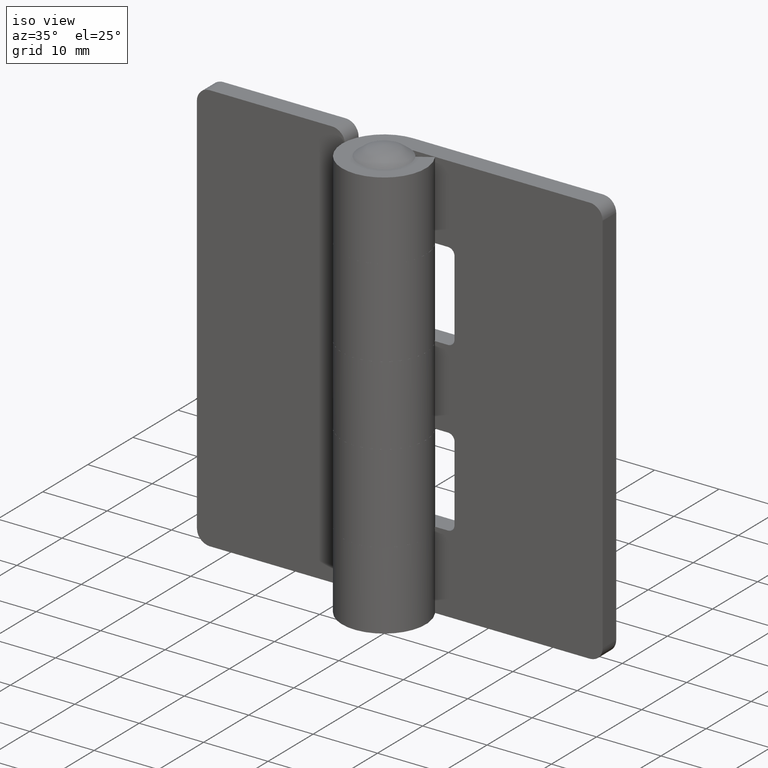
[diagram: clean part render]
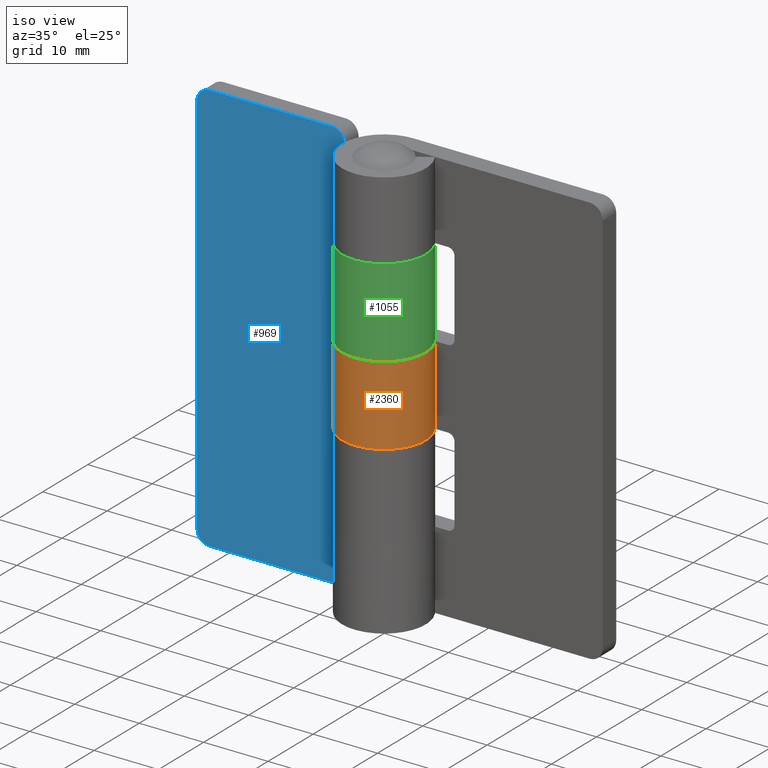
[diagram: same view with three faces highlighted in distinct colors, each labeled with its STEP entity id]
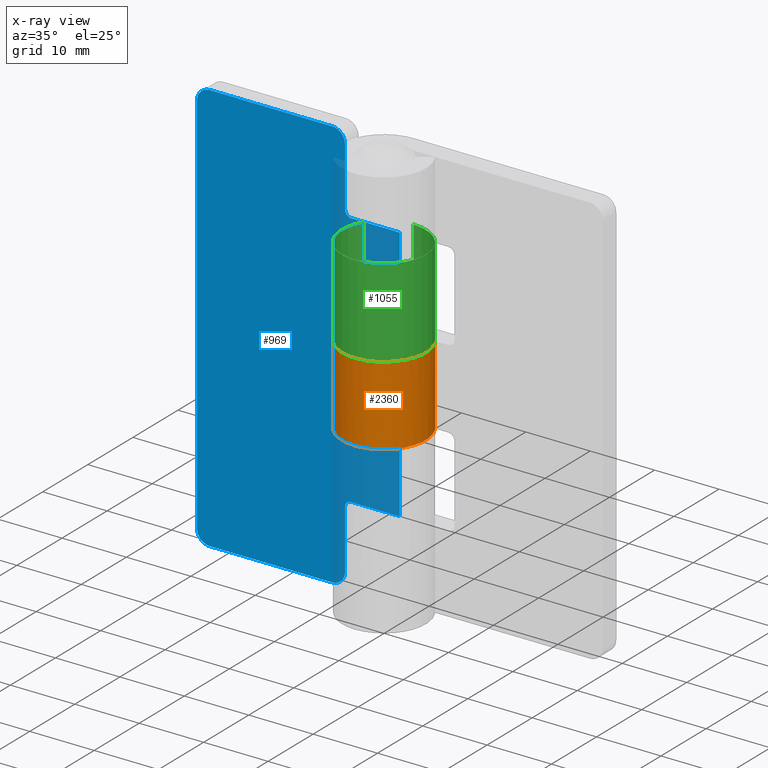
[diagram: x-ray of the same camera — body ghosted, the three highlighted faces saturated]
A machine part, iso view with three faces highlighted in distinct colors.
The next image is the same camera in x-ray (body ghosted, the three faces saturated) — at least one of them is partly hidden behind the body in this view.
Their STEP definitions:

[orange] entity #2360 — the highlighted face is a freeform B-spline surface patch.
#1576=CARTESIAN_POINT('',(-1.193992E-015,6.499999000000000,25.850006000000199));
#1577=VERTEX_POINT('',#1576);
#1612=CARTESIAN_POINT('',(5.508857131928449,3.449999000000000,25.850006000000199));
#1613=VERTEX_POINT('',#1612);
#1619=CARTESIAN_POINT('',(5.508857131928449,3.449999000000000,25.850006000000199));
#1620=CARTESIAN_POINT('',(8.180823277852058,-0.816517409487065,25.850006000000203));
#1621=CARTESIAN_POINT('',(4.718295843924373,-4.470758309656011,25.850006000000199));
#1622=CARTESIAN_POINT('',(1.255768409996687,-8.124999209824960,25.850006000000203));
#1623=CARTESIAN_POINT('',(-3.148412814419355,-5.686607287004006,25.850006000000199));
#1624=CARTESIAN_POINT('',(-7.552594038835394,-3.248215364183054,25.850006000000203));
#1625=CARTESIAN_POINT('',(-6.293367306757411,1.625891468194070,25.850006000000199));
#1626=CARTESIAN_POINT('',(-5.034140574679428,6.499998300571200,25.850006000000203));
#1627=CARTESIAN_POINT('',(-1.193992E-015,6.499999000000000,25.850006000000199));
#1635=(BOUNDED_CURVE()B_SPLINE_CURVE(2,(#1619,#1620,#1621,#1622,#1623,#1624,#1625,#1626,#1627),.UNSPECIFIED.,.F.,.U.)B_SPLINE_CURVE_WITH_KNOTS((3,2,2,2,3),(0.0,0.250000000000000,0.500000000000000,0.750000000000000,1.0),.UNSPECIFIED.)CURVE()GEOMETRIC_REPRESENTATION_ITEM()RATIONAL_B_SPLINE_CURVE((1.0,0.790612857104433,1.0,0.790612857104433,1.0,0.790612857104433,1.0,0.790612857104433,1.0))REPRESENTATION_ITEM(''));
#1636=EDGE_CURVE('',#1613,#1577,#1635,.T.);
#1744=CARTESIAN_POINT('',(-1.193991E-015,6.500000000000000,38.150001999999851));
#1745=VERTEX_POINT('',#1744);
#1751=CARTESIAN_POINT('',(5.508857131928449,3.449999000000000,38.150001999999851));
#1752=VERTEX_POINT('',#1751);
#1753=CARTESIAN_POINT('',(0.0,6.500000000000000,38.150001999999851));
#1754=CARTESIAN_POINT('',(-5.034140574679423,6.500000000000000,38.150001999999851));
#1755=CARTESIAN_POINT('',(-6.293367306757409,1.625892967644855,38.150001999999851));
#1756=CARTESIAN_POINT('',(-7.552594038835394,-3.248214064710291,38.150001999999851));
#1757=CARTESIAN_POINT('',(-3.148412814419357,-5.686606787004002,38.150001999999851));
#1758=CARTESIAN_POINT('',(1.255768409996682,-8.124999509297712,38.150001999999851));
#1759=CARTESIAN_POINT('',(4.718295843924371,-4.470758809106796,38.150001999999851));
#1760=CARTESIAN_POINT('',(8.180823277852062,-0.816518108915877,38.150001999999851));
#1761=CARTESIAN_POINT('',(5.508857131928457,3.449998999999996,38.150001999999851));
#1769=(BOUNDED_CURVE()B_SPLINE_CURVE(2,(#1753,#1754,#1755,#1756,#1757,#1758,#1759,#1760,#1761),.UNSPECIFIED.,.F.,.U.)B_SPLINE_CURVE_WITH_KNOTS((3,2,2,2,3),(0.0,0.250000000000000,0.500000000000000,0.750000000000000,1.0),.UNSPECIFIED.)CURVE()GEOMETRIC_REPRESENTATION_ITEM()RATIONAL_B_SPLINE_CURVE((1.0,0.790612857104433,1.0,0.790612857104433,1.0,0.790612857104433,1.0,0.790612857104433,1.0))REPRESENTATION_ITEM(''));
#1770=EDGE_CURVE('',#1745,#1752,#1769,.T.);
#2080=CARTESIAN_POINT('',(5.508857131928449,3.449999000000000,38.150001999999851));
#2081=CARTESIAN_POINT('',(5.508857131928449,3.449999000000000,25.850006000000199));
#2082=QUASI_UNIFORM_CURVE('',1,(#2080,#2081),.UNSPECIFIED.,.F.,.U.);
#2083=EDGE_CURVE('',#1752,#1613,#2082,.T.);
#2193=CARTESIAN_POINT('',(-1.193991E-015,6.500000000000000,38.150001999999851));
#2194=CARTESIAN_POINT('',(-1.193992E-015,6.499999000000000,25.850006000000199));
#2195=QUASI_UNIFORM_CURVE('',1,(#2193,#2194),.UNSPECIFIED.,.F.,.U.);
#2196=EDGE_CURVE('',#1745,#1577,#2195,.T.);
#2332=CARTESIAN_POINT('',(0.277016511232355,6.494094382783840,38.457501899999848));
#2333=CARTESIAN_POINT('',(0.277016511232355,6.494094382783840,25.534818602500199));
#2334=CARTESIAN_POINT('',(-7.887179053368678,6.842351867048327,38.457501899999855));
#2335=CARTESIAN_POINT('',(-7.887179053368678,6.842351867048327,25.534818602500199));
#2336=CARTESIAN_POINT('',(-6.389966320746899,-1.190936782419748,38.457501899999848));
#2337=CARTESIAN_POINT('',(-6.389966320746899,-1.190936782419748,25.534818602500199));
#2338=CARTESIAN_POINT('',(-4.892753588125120,-9.224225431887824,38.457501899999855));
#2339=CARTESIAN_POINT('',(-4.892753588125120,-9.224225431887824,25.534818602500199));
#2340=CARTESIAN_POINT('',(2.597842810915255,-5.958289413059413,38.457501899999848));
#2341=CARTESIAN_POINT('',(2.597842810915255,-5.958289413059413,25.534818602500199));
#2342=CARTESIAN_POINT('',(10.088439209955627,-2.692353394231001,38.457501899999855));
#2343=CARTESIAN_POINT('',(10.088439209955627,-2.692353394231001,25.534818602500199));
#2344=CARTESIAN_POINT('',(5.221191362076864,3.871583753526960,38.457501899999848));
#2345=CARTESIAN_POINT('',(5.221191362076864,3.871583753526960,25.534818602500199));
#2353=(BOUNDED_SURFACE()B_SPLINE_SURFACE(1,2,((#2332,#2334,#2336,#2338,#2340,#2342,#2344),(#2333,#2335,#2337,#2339,#2341,#2343,#2345)),.UNSPECIFIED.,.F.,.F.,.U.)B_SPLINE_SURFACE_WITH_KNOTS((2,2),(3,2,2,3),(0.0,12.922683297499651),(0.0,12.540911261256831,25.081822522513662,37.622733783770492),.UNSPECIFIED.)GEOMETRIC_REPRESENTATION_ITEM()RATIONAL_B_SPLINE_SURFACE(((1.0,0.622514636637620,1.0,0.622514636637620,1.0,0.622514636637620,1.0),(1.0,0.622514636637620,1.0,0.622514636637620,1.0,0.622514636637620,1.0)))REPRESENTATION_ITEM('')SURFACE());
#2354=ORIENTED_EDGE('',*,*,#1636,.F.);
#2355=ORIENTED_EDGE('',*,*,#2083,.F.);
#2356=ORIENTED_EDGE('',*,*,#1770,.F.);
#2357=ORIENTED_EDGE('',*,*,#2196,.T.);
#2358=EDGE_LOOP('',(#2354,#2355,#2356,#2357));
#2359=FACE_OUTER_BOUND('',#2358,.T.);
#2360=ADVANCED_FACE('',(#2359),#2353,.T.);

[blue] entity #969 — the highlighted face is a freeform B-spline surface patch.
#58=CARTESIAN_POINT('',(-8.500008000000110,3.499999000000000,37.150001999999851));
#59=VERTEX_POINT('',#58);
#60=CARTESIAN_POINT('',(-7.500008000000110,3.499999000000000,38.150001999999851));
#61=VERTEX_POINT('',#60);
#62=CARTESIAN_POINT('',(-8.500008000000111,3.499999000000000,37.150001999999887));
#63=CARTESIAN_POINT('',(-8.500008000000111,3.499999000000001,37.564215562372979));
#64=CARTESIAN_POINT('',(-8.207114781186673,3.499999000000000,37.857108781186433));
#65=CARTESIAN_POINT('',(-7.914221562373220,3.499999000000001,38.150001999999908));
#66=CARTESIAN_POINT('',(-7.500008000000110,3.499999000000000,38.150001999999901));
#74=(BOUNDED_CURVE()B_SPLINE_CURVE(2,(#62,#63,#64,#65,#66),.UNSPECIFIED.,.F.,.U.)B_SPLINE_CURVE_WITH_KNOTS((3,2,3),(0.0,0.500000000000000,1.0),.UNSPECIFIED.)CURVE()GEOMETRIC_REPRESENTATION_ITEM()RATIONAL_B_SPLINE_CURVE((1.0,0.923879532511291,1.0,0.923879532511291,1.0))REPRESENTATION_ITEM(''));
#75=EDGE_CURVE('',#59,#61,#74,.T.);
#121=CARTESIAN_POINT('',(-7.500008000000110,3.499999000000000,25.849999000000050));
#122=VERTEX_POINT('',#121);
#123=CARTESIAN_POINT('',(-8.500008000000110,3.499999000000000,26.849998999999951));
#124=VERTEX_POINT('',#123);
#125=CARTESIAN_POINT('',(-7.500008000000110,3.499999000000000,25.849999000000000));
#126=CARTESIAN_POINT('',(-8.500008000000111,3.499999000000001,25.849998999999993));
#127=CARTESIAN_POINT('',(-8.500008000000111,3.499999000000000,26.849999000000000));
#135=(BOUNDED_CURVE()B_SPLINE_CURVE(2,(#125,#126,#127),.UNSPECIFIED.,.F.,.U.)CURVE()GEOMETRIC_REPRESENTATION_ITEM()QUASI_UNIFORM_CURVE()RATIONAL_B_SPLINE_CURVE((1.0,0.707106781186548,1.0))REPRESENTATION_ITEM(''));
#136=EDGE_CURVE('',#122,#124,#135,.T.);
#182=CARTESIAN_POINT('',(-8.500008000000110,3.499999000000000,11.100006000000040));
#183=VERTEX_POINT('',#182);
#184=CARTESIAN_POINT('',(-7.500008000000110,3.499999000000000,12.100006000000040));
#185=VERTEX_POINT('',#184);
#186=CARTESIAN_POINT('',(-8.500008000000110,3.499999000000000,11.100006000000040));
#187=CARTESIAN_POINT('',(-8.500008000000111,3.499999000000001,12.100006000000000));
#188=CARTESIAN_POINT('',(-7.500008000000110,3.499999000000000,12.100006000000040));
#196=(BOUNDED_CURVE()B_SPLINE_CURVE(2,(#186,#187,#188),.UNSPECIFIED.,.F.,.U.)CURVE()GEOMETRIC_REPRESENTATION_ITEM()QUASI_UNIFORM_CURVE()RATIONAL_B_SPLINE_CURVE((1.0,0.707106781186548,1.0))REPRESENTATION_ITEM(''));
#197=EDGE_CURVE('',#183,#185,#196,.T.);
#243=CARTESIAN_POINT('',(-7.500008000000110,3.499999000000000,51.900002000000100));
#244=VERTEX_POINT('',#243);
#245=CARTESIAN_POINT('',(-8.500008000000110,3.499999000000000,52.900002000000100));
#246=VERTEX_POINT('',#245);
#247=CARTESIAN_POINT('',(-7.500008000000110,3.499999000000000,51.900002000000100));
#248=CARTESIAN_POINT('',(-8.500008000000111,3.499999000000001,51.900002000000093));
#249=CARTESIAN_POINT('',(-8.500008000000111,3.499999000000000,52.900002000000100));
#257=(BOUNDED_CURVE()B_SPLINE_CURVE(2,(#247,#248,#249),.UNSPECIFIED.,.F.,.U.)CURVE()GEOMETRIC_REPRESENTATION_ITEM()QUASI_UNIFORM_CURVE()RATIONAL_B_SPLINE_CURVE((1.0,0.707106781186548,1.0))REPRESENTATION_ITEM(''));
#258=EDGE_CURVE('',#244,#246,#257,.T.);
#304=CARTESIAN_POINT('',(-8.500008000000110,3.499999000000000,62.000008000000101));
#305=VERTEX_POINT('',#304);
#306=CARTESIAN_POINT('',(-10.500008000000101,3.499999000000000,64.000008000000093));
#307=VERTEX_POINT('',#306);
#308=CARTESIAN_POINT('',(-8.500008000000101,3.499999000000000,62.000008000000101));
#309=CARTESIAN_POINT('',(-8.500008000000101,3.499999000000001,64.000008000000093));
#310=CARTESIAN_POINT('',(-10.500008000000101,3.499999000000000,64.000008000000093));
#318=(BOUNDED_CURVE()B_SPLINE_CURVE(2,(#308,#309,#310),.UNSPECIFIED.,.F.,.U.)CURVE()GEOMETRIC_REPRESENTATION_ITEM()QUASI_UNIFORM_CURVE()RATIONAL_B_SPLINE_CURVE((1.0,0.707106781186548,1.0))REPRESENTATION_ITEM(''));
#319=EDGE_CURVE('',#305,#307,#318,.T.);
#365=CARTESIAN_POINT('',(-10.500008000000101,3.499999000000000,0.0));
#366=VERTEX_POINT('',#365);
#367=CARTESIAN_POINT('',(-8.500008000000110,3.499999000000000,2.0));
#368=VERTEX_POINT('',#367);
#369=CARTESIAN_POINT('',(-10.500008000000101,3.499999000000000,0.0));
#370=CARTESIAN_POINT('',(-8.500008000000101,3.499999000000001,0.0));
#371=CARTESIAN_POINT('',(-8.500008000000101,3.499999000000000,2.0));
#379=(BOUNDED_CURVE()B_SPLINE_CURVE(2,(#369,#370,#371),.UNSPECIFIED.,.F.,.U.)CURVE()GEOMETRIC_REPRESENTATION_ITEM()QUASI_UNIFORM_CURVE()RATIONAL_B_SPLINE_CURVE((1.0,0.707106781186548,1.0))REPRESENTATION_ITEM(''));
#380=EDGE_CURVE('',#366,#368,#379,.T.);
#426=CARTESIAN_POINT('',(-29.500008000000001,3.499999000000000,64.000008000000093));
#427=VERTEX_POINT('',#426);
#428=CARTESIAN_POINT('',(-31.500008000000051,3.499999000000000,62.000008000000101));
#429=VERTEX_POINT('',#428);
#430=CARTESIAN_POINT('',(-29.500008000000001,3.499999000000000,64.000008000000093));
#431=CARTESIAN_POINT('',(-31.500008000000001,3.499999000000001,64.000008000000093));
#432=CARTESIAN_POINT('',(-31.500008000000008,3.499999000000000,62.000008000000101));
#440=(BOUNDED_CURVE()B_SPLINE_CURVE(2,(#430,#431,#432),.UNSPECIFIED.,.F.,.U.)CURVE()GEOMETRIC_REPRESENTATION_ITEM()QUASI_UNIFORM_CURVE()RATIONAL_B_SPLINE_CURVE((1.0,0.707106781186548,1.0))REPRESENTATION_ITEM(''));
#441=EDGE_CURVE('',#427,#429,#440,.T.);
#487=CARTESIAN_POINT('',(-31.500008000000051,3.499999000000000,2.0));
#488=VERTEX_POINT('',#487);
#489=CARTESIAN_POINT('',(-29.500008000000001,3.499999000000000,0.0));
#490=VERTEX_POINT('',#489);
#491=CARTESIAN_POINT('',(-31.500008000000008,3.499999000000000,2.0));
#492=CARTESIAN_POINT('',(-31.500008000000001,3.499999000000001,0.0));
#493=CARTESIAN_POINT('',(-29.500008000000001,3.499999000000000,0.0));
#501=(BOUNDED_CURVE()B_SPLINE_CURVE(2,(#491,#492,#493),.UNSPECIFIED.,.F.,.U.)CURVE()GEOMETRIC_REPRESENTATION_ITEM()QUASI_UNIFORM_CURVE()RATIONAL_B_SPLINE_CURVE((1.0,0.707106781186548,1.0))REPRESENTATION_ITEM(''));
#502=EDGE_CURVE('',#488,#490,#501,.T.);
#547=CARTESIAN_POINT('',(2.143060E-016,3.499999000000000,25.849999000000050));
#548=VERTEX_POINT('',#547);
#549=CARTESIAN_POINT('',(-7.500008000000110,3.499999000000000,25.849999000000050));
#550=CARTESIAN_POINT('',(2.143060E-016,3.499999000000000,25.849999000000050));
#551=QUASI_UNIFORM_CURVE('',1,(#549,#550),.UNSPECIFIED.,.F.,.U.);
#552=EDGE_CURVE('',#122,#548,#551,.T.);
#609=CARTESIAN_POINT('',(2.143060E-016,3.499999000000000,38.150001999999851));
#610=VERTEX_POINT('',#609);
#611=CARTESIAN_POINT('',(2.143060E-016,3.499999000000000,38.150001999999851));
#612=CARTESIAN_POINT('',(-7.500008000000110,3.499999000000000,38.150001999999851));
#613=QUASI_UNIFORM_CURVE('',1,(#611,#612),.UNSPECIFIED.,.F.,.U.);
#614=EDGE_CURVE('',#610,#61,#613,.T.);
#679=CARTESIAN_POINT('',(-8.500008000000110,3.499999000000000,37.150001999999851));
#680=CARTESIAN_POINT('',(-8.500008000000110,3.499999000000000,26.849998999999951));
#681=QUASI_UNIFORM_CURVE('',1,(#679,#680),.UNSPECIFIED.,.F.,.U.);
#682=EDGE_CURVE('',#59,#124,#681,.T.);
#699=CARTESIAN_POINT('',(2.143060E-016,3.499999000000000,12.100006000000040));
#700=VERTEX_POINT('',#699);
#701=CARTESIAN_POINT('',(-7.500008000000110,3.499999000000000,12.100006000000040));
#702=CARTESIAN_POINT('',(2.143060E-016,3.499999000000000,12.100006000000040));
#703=QUASI_UNIFORM_CURVE('',1,(#701,#702),.UNSPECIFIED.,.F.,.U.);
#704=EDGE_CURVE('',#185,#700,#703,.T.);
#775=CARTESIAN_POINT('',(-8.500008000000110,3.499999000000000,2.0));
#776=CARTESIAN_POINT('',(-8.500008000000110,3.499999000000000,11.100006000000040));
#777=QUASI_UNIFORM_CURVE('',1,(#775,#776),.UNSPECIFIED.,.F.,.U.);
#778=EDGE_CURVE('',#368,#183,#777,.T.);
#797=CARTESIAN_POINT('',(2.143060E-016,3.499999000000000,51.900002000000100));
#798=VERTEX_POINT('',#797);
#799=CARTESIAN_POINT('',(2.143060E-016,3.499999000000000,51.900002000000100));
#800=CARTESIAN_POINT('',(-7.500008000000110,3.499999000000000,51.900002000000100));
#801=QUASI_UNIFORM_CURVE('',1,(#799,#800),.UNSPECIFIED.,.F.,.U.);
#802=EDGE_CURVE('',#798,#244,#801,.T.);
#859=CARTESIAN_POINT('',(-8.500008000000110,3.499999000000000,52.900002000000100));
#860=CARTESIAN_POINT('',(-8.500008000000110,3.499999000000000,62.000008000000101));
#861=QUASI_UNIFORM_CURVE('',1,(#859,#860),.UNSPECIFIED.,.F.,.U.);
#862=EDGE_CURVE('',#246,#305,#861,.T.);
#885=CARTESIAN_POINT('',(-31.500008000000051,3.499999000000000,62.000008000000101));
#886=CARTESIAN_POINT('',(-31.500008000000051,3.499999000000000,2.0));
#887=QUASI_UNIFORM_CURVE('',1,(#885,#886),.UNSPECIFIED.,.F.,.U.);
#888=EDGE_CURVE('',#429,#488,#887,.T.);
#899=CARTESIAN_POINT('',(-10.500008000000101,3.499999000000000,64.000008000000093));
#900=CARTESIAN_POINT('',(-29.500008000000001,3.499999000000000,64.000008000000093));
#901=QUASI_UNIFORM_CURVE('',1,(#899,#900),.UNSPECIFIED.,.F.,.U.);
#902=EDGE_CURVE('',#307,#427,#901,.T.);
#925=CARTESIAN_POINT('',(-10.500008000000101,3.499999000000000,0.0));
#926=CARTESIAN_POINT('',(-29.500008000000001,3.499999000000000,0.0));
#927=QUASI_UNIFORM_CURVE('',1,(#925,#926),.UNSPECIFIED.,.F.,.U.);
#928=EDGE_CURVE('',#366,#490,#927,.T.);
#934=CARTESIAN_POINT('',(-33.073433042847391,3.499999000000000,67.196808275555668));
#935=CARTESIAN_POINT('',(-33.073433042847391,3.499999000000000,-3.196801992169553));
#936=CARTESIAN_POINT('',(1.573426169375410,3.499999000000000,67.196808275555668));
#937=CARTESIAN_POINT('',(1.573426169375410,3.499999000000000,-3.196801992169553));
#938=B_SPLINE_SURFACE_WITH_KNOTS('',1,1,((#934,#936),(#935,#937)),.UNSPECIFIED.,.F.,.F.,.U.,(2,2),(2,2),(0.0,70.393610267725222),(0.0,34.646859212222800),.UNSPECIFIED.);
#939=ORIENTED_EDGE('',*,*,#928,.F.);
#940=ORIENTED_EDGE('',*,*,#380,.T.);
#941=ORIENTED_EDGE('',*,*,#778,.T.);
#942=ORIENTED_EDGE('',*,*,#197,.T.);
#943=ORIENTED_EDGE('',*,*,#704,.T.);
#944=CARTESIAN_POINT('',(2.143060E-016,3.499999000000000,25.849999000000050));
#945=CARTESIAN_POINT('',(2.143060E-016,3.499999000000000,12.100006000000040));
#946=QUASI_UNIFORM_CURVE('',1,(#944,#945),.UNSPECIFIED.,.F.,.U.);
#947=EDGE_CURVE('',#548,#700,#946,.T.);
#948=ORIENTED_EDGE('',*,*,#947,.F.);
#949=ORIENTED_EDGE('',*,*,#552,.F.);
#950=ORIENTED_EDGE('',*,*,#136,.T.);
#951=ORIENTED_EDGE('',*,*,#682,.F.);
#952=ORIENTED_EDGE('',*,*,#75,.T.);
#953=ORIENTED_EDGE('',*,*,#614,.F.);
#954=CARTESIAN_POINT('',(2.143060E-016,3.499999000000000,51.900002000000100));
#955=CARTESIAN_POINT('',(2.143060E-016,3.499999000000000,38.150001999999851));
#956=QUASI_UNIFORM_CURVE('',1,(#954,#955),.UNSPECIFIED.,.F.,.U.);
#957=EDGE_CURVE('',#798,#610,#956,.T.);
#958=ORIENTED_EDGE('',*,*,#957,.F.);
#959=ORIENTED_EDGE('',*,*,#802,.T.);
#960=ORIENTED_EDGE('',*,*,#258,.T.);
#961=ORIENTED_EDGE('',*,*,#862,.T.);
#962=ORIENTED_EDGE('',*,*,#319,.T.);
#963=ORIENTED_EDGE('',*,*,#902,.T.);
#964=ORIENTED_EDGE('',*,*,#441,.T.);
#965=ORIENTED_EDGE('',*,*,#888,.T.);
#966=ORIENTED_EDGE('',*,*,#502,.T.);
#967=EDGE_LOOP('',(#939,#940,#941,#942,#943,#948,#949,#950,#951,#952,#953,#958,#959,#960,#961,#962,#963,#964,#965,#966));
#968=FACE_OUTER_BOUND('',#967,.T.);
#969=ADVANCED_FACE('',(#968),#938,.T.);

[green] entity #1055 — the highlighted face is a freeform B-spline surface patch.
#617=CARTESIAN_POINT('',(0.0,6.499999000000000,38.150001999999901));
#618=VERTEX_POINT('',#617);
#624=CARTESIAN_POINT('',(-5.508857131928449,3.449999000000000,38.150001999999851));
#625=VERTEX_POINT('',#624);
#626=CARTESIAN_POINT('',(0.0,6.499999000000000,38.150001999999901));
#627=CARTESIAN_POINT('',(5.034140574679418,6.499998300571192,38.150001999999937));
#628=CARTESIAN_POINT('',(6.293367306757405,1.625891468194069,38.150001999999922));
#629=CARTESIAN_POINT('',(7.552594038835393,-3.248215364183054,38.150001999999915));
#630=CARTESIAN_POINT('',(3.148412814419360,-5.686607287004000,38.150001999999873));
#631=CARTESIAN_POINT('',(-1.255768409996672,-8.124999209824946,38.150001999999837));
#632=CARTESIAN_POINT('',(-4.718295843924360,-4.470758309656006,38.150001999999830));
#633=CARTESIAN_POINT('',(-8.180823277852049,-0.816517409487065,38.150001999999823));
#634=CARTESIAN_POINT('',(-5.508857131928449,3.449999000000000,38.150001999999851));
#642=(BOUNDED_CURVE()B_SPLINE_CURVE(2,(#626,#627,#628,#629,#630,#631,#632,#633,#634),.UNSPECIFIED.,.F.,.U.)B_SPLINE_CURVE_WITH_KNOTS((3,2,2,2,3),(0.0,0.250000000000000,0.500000000000000,0.750000000000000,1.0),.UNSPECIFIED.)CURVE()GEOMETRIC_REPRESENTATION_ITEM()RATIONAL_B_SPLINE_CURVE((1.0,0.790612857104433,1.0,0.790612857104433,1.0,0.790612857104433,1.0,0.790612857104433,1.0))REPRESENTATION_ITEM(''));
#643=EDGE_CURVE('',#618,#625,#642,.T.);
#789=CARTESIAN_POINT('',(0.0,6.499999000000000,51.900002000000100));
#790=VERTEX_POINT('',#789);
#825=CARTESIAN_POINT('',(-5.508857131928449,3.449999000000000,51.900002000000100));
#826=VERTEX_POINT('',#825);
#832=CARTESIAN_POINT('',(0.0,6.499999000000000,51.900002000000100));
#833=CARTESIAN_POINT('',(5.034140574679418,6.499998300571192,51.900002000000100));
#834=CARTESIAN_POINT('',(6.293367306757405,1.625891468194069,51.900002000000100));
#835=CARTESIAN_POINT('',(7.552594038835393,-3.248215364183054,51.900002000000100));
#836=CARTESIAN_POINT('',(3.148412814419360,-5.686607287004000,51.900002000000100));
#837=CARTESIAN_POINT('',(-1.255768409996672,-8.124999209824946,51.900002000000100));
#838=CARTESIAN_POINT('',(-4.718295843924360,-4.470758309656006,51.900002000000100));
#839=CARTESIAN_POINT('',(-8.180823277852049,-0.816517409487065,51.900002000000100));
#840=CARTESIAN_POINT('',(-5.508857131928449,3.449999000000000,51.900002000000100));
#848=(BOUNDED_CURVE()B_SPLINE_CURVE(2,(#832,#833,#834,#835,#836,#837,#838,#839,#840),.UNSPECIFIED.,.F.,.U.)B_SPLINE_CURVE_WITH_KNOTS((3,2,2,2,3),(0.0,0.250000000000000,0.500000000000000,0.750000000000000,1.0),.UNSPECIFIED.)CURVE()GEOMETRIC_REPRESENTATION_ITEM()RATIONAL_B_SPLINE_CURVE((1.0,0.790612857104433,1.0,0.790612857104433,1.0,0.790612857104433,1.0,0.790612857104433,1.0))REPRESENTATION_ITEM(''));
#849=EDGE_CURVE('',#790,#826,#848,.T.);
#1019=CARTESIAN_POINT('',(-5.416658938690897,3.593021839886306,52.243752000000107));
#1020=CARTESIAN_POINT('',(-5.416658938690897,3.593021839886306,37.797658249999827));
#1021=CARTESIAN_POINT('',(-9.880156787744070,-3.135922931199892,52.243752000000114));
#1022=CARTESIAN_POINT('',(-9.880156787744070,-3.135922931199892,37.797658249999834));
#1023=CARTESIAN_POINT('',(-2.353108489402961,-6.059115483063487,52.243752000000107));
#1024=CARTESIAN_POINT('',(-2.353108489402961,-6.059115483063487,37.797658249999827));
#1025=CARTESIAN_POINT('',(5.173939808938148,-8.982308034927083,52.243752000000114));
#1026=CARTESIAN_POINT('',(5.173939808938148,-8.982308034927083,37.797658249999834));
#1027=CARTESIAN_POINT('',(6.421901107377670,-1.004582583494967,52.243752000000107));
#1028=CARTESIAN_POINT('',(6.421901107377670,-1.004582583494967,37.797658249999827));
#1029=CARTESIAN_POINT('',(7.669862405817186,6.973142867937148,52.243752000000114));
#1030=CARTESIAN_POINT('',(7.669862405817186,6.973142867937148,37.797658249999834));
#1031=CARTESIAN_POINT('',(-0.390311894886354,6.488270696010623,52.243752000000107));
#1032=CARTESIAN_POINT('',(-0.390311894886354,6.488270696010623,37.797658249999827));
#1040=(BOUNDED_SURFACE()B_SPLINE_SURFACE(1,2,((#1019,#1021,#1023,#1025,#1027,#1029,#1031),(#1020,#1022,#1024,#1026,#1028,#1030,#1032)),.UNSPECIFIED.,.F.,.F.,.U.)B_SPLINE_SURFACE_WITH_KNOTS((2,2),(3,2,2,3),(0.0,14.446093750000291),(0.0,12.447814807346189,24.895629614692378,37.343444422038559),.UNSPECIFIED.)GEOMETRIC_REPRESENTATION_ITEM()RATIONAL_B_SPLINE_SURFACE(((1.0,0.627057105746662,1.0,0.627057105746662,1.0,0.627057105746662,1.0),(1.0,0.627057105746662,1.0,0.627057105746662,1.0,0.627057105746662,1.0)))REPRESENTATION_ITEM('')SURFACE());
#1041=CARTESIAN_POINT('',(-5.508857131928449,3.449999000000000,51.900002000000100));
#1042=CARTESIAN_POINT('',(-5.508857131928449,3.449999000000000,38.150001999999851));
#1043=QUASI_UNIFORM_CURVE('',1,(#1041,#1042),.UNSPECIFIED.,.F.,.U.);
#1044=EDGE_CURVE('',#826,#625,#1043,.T.);
#1045=ORIENTED_EDGE('',*,*,#1044,.T.);
#1046=ORIENTED_EDGE('',*,*,#643,.F.);
#1047=CARTESIAN_POINT('',(0.0,6.499999000000000,51.900002000000100));
#1048=CARTESIAN_POINT('',(0.0,6.499999000000000,38.150001999999901));
#1049=QUASI_UNIFORM_CURVE('',1,(#1047,#1048),.UNSPECIFIED.,.F.,.U.);
#1050=EDGE_CURVE('',#790,#618,#1049,.T.);
#1051=ORIENTED_EDGE('',*,*,#1050,.F.);
#1052=ORIENTED_EDGE('',*,*,#849,.T.);
#1053=EDGE_LOOP('',(#1045,#1046,#1051,#1052));
#1054=FACE_OUTER_BOUND('',#1053,.T.);
#1055=ADVANCED_FACE('',(#1054),#1040,.T.);